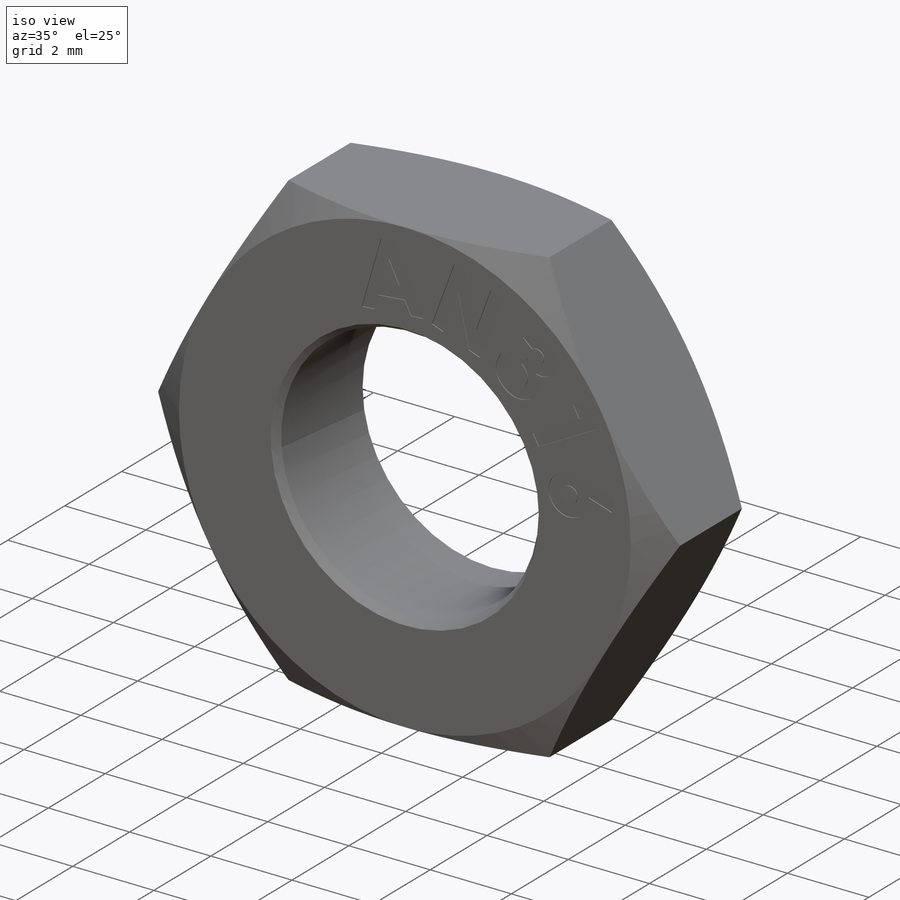
[diagram: iso view]
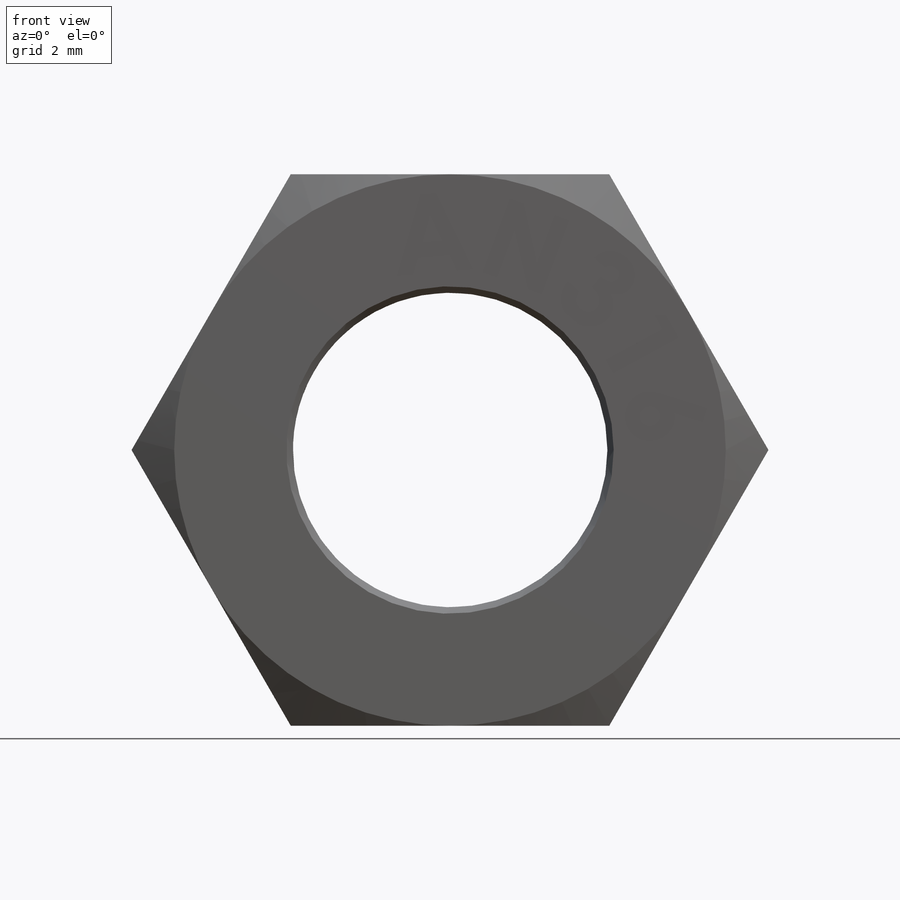
[diagram: front view]
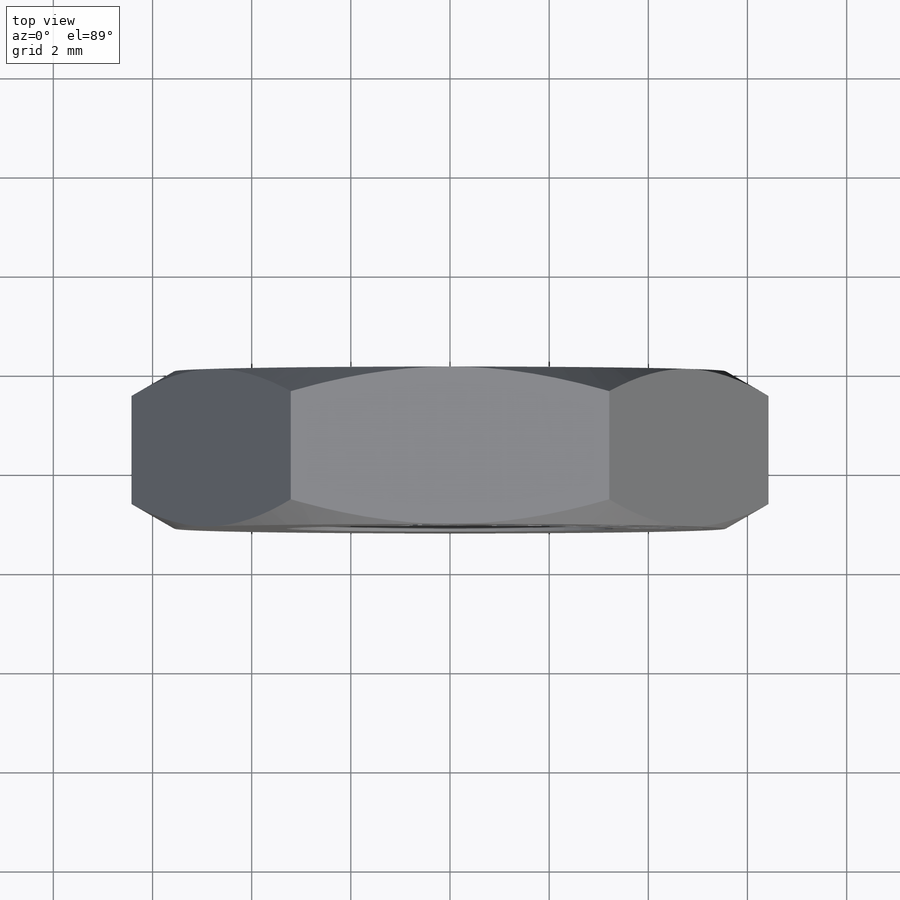
[diagram: top view]
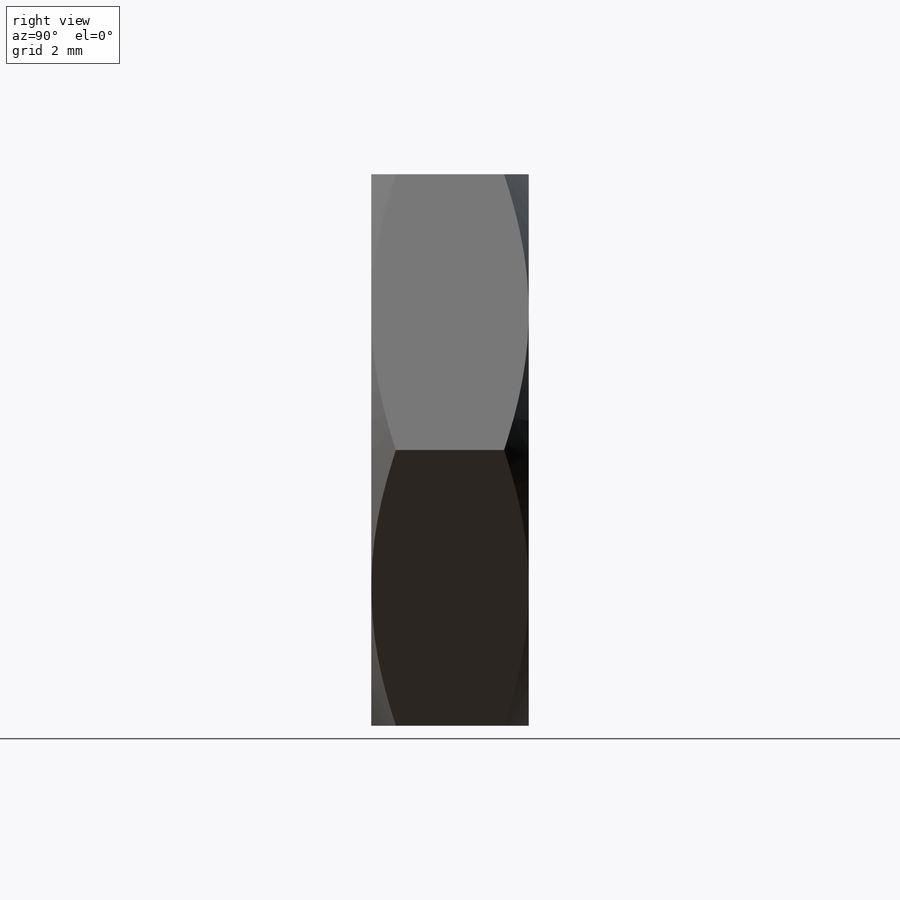
[diagram: right view]
SOLIDWORKS PART (.sldprt)
format: sldprt  version: not decoded by parser v0  size: 1,653,248 bytes
history: native  units: mm
features: sketch x4, cut_extrude x3, material x1, extrude x1, chamfer x1 + 1 further entry (+12 scaffold rows collapsed)
feature tree (23):
  scaffold x12  (default folders/planes/origin — collapsed)
  material  "AISI 4130 Steel, normalized at 870C"
  "Design Table"
  sketch  "Sketch2"  dims[Diameter A=11.1252mm Thread T=6.35mm]
  extrude  "Nut"  Depth=3.175mm
  sketch  "Sketch3"
  cut_extrude  "Cut-Extrude1"  Depth=3.175mm
  sketch  "Sketch4"
  cut_extrude  "Cut-Extrude2"  Depth=3.175mm
  chamfer  "Chamfer1"  Distance=0.127mm Angle=55deg
  sketch  "Sketch5"  dims[D1=0.381mm]
  cut_extrude  "Cut-Extrude3"  Depth=0.0254mm
decode coverage: 7 of 9 modeling features carry decoded parameters; 1 rows unclassified (native names shown)
note: suppression state not decoded; provenance and decode notes live in map.json
